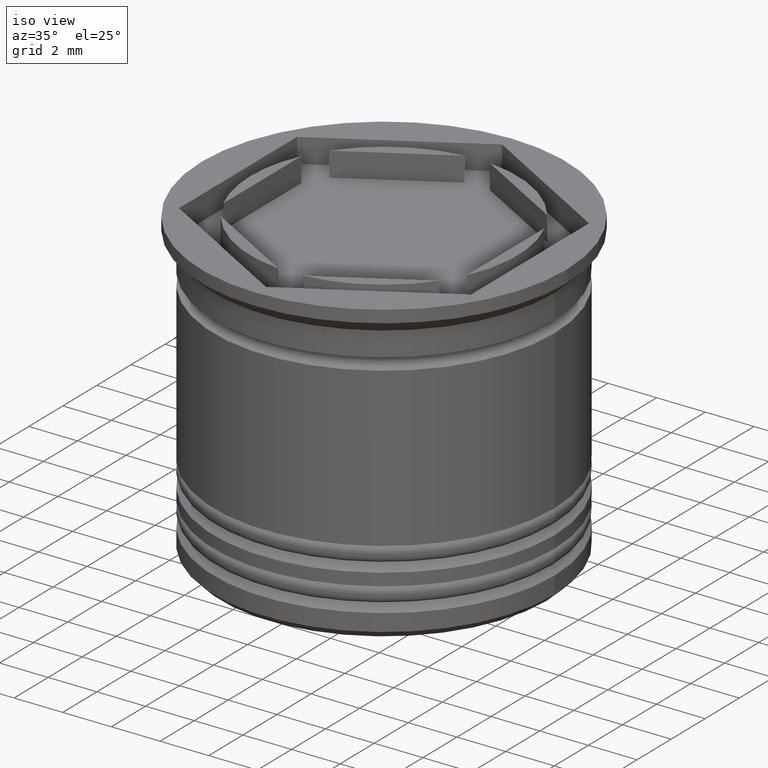
[diagram: clean part render]
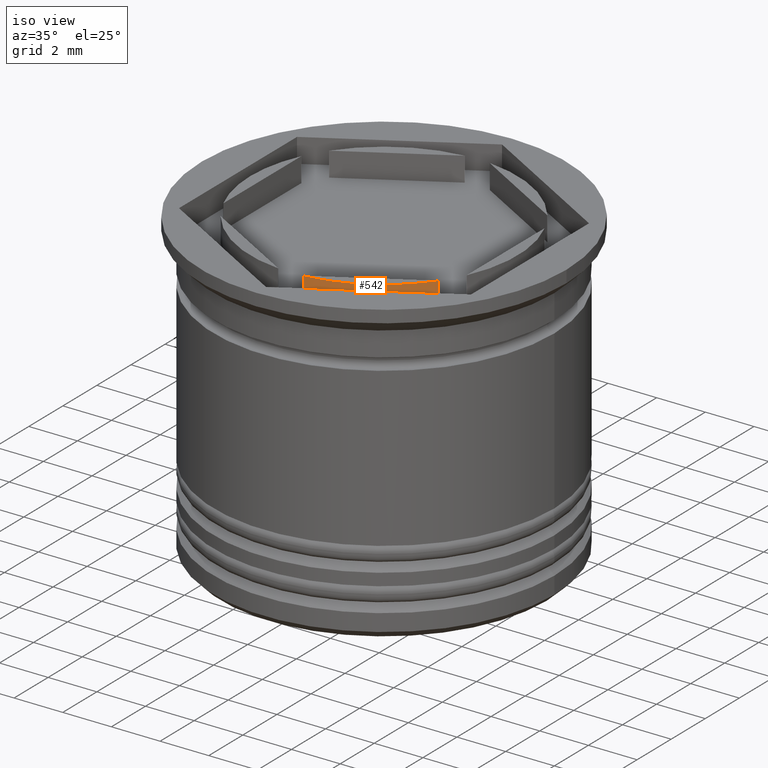
[diagram: same view with one face highlighted and labeled with its STEP entity id]
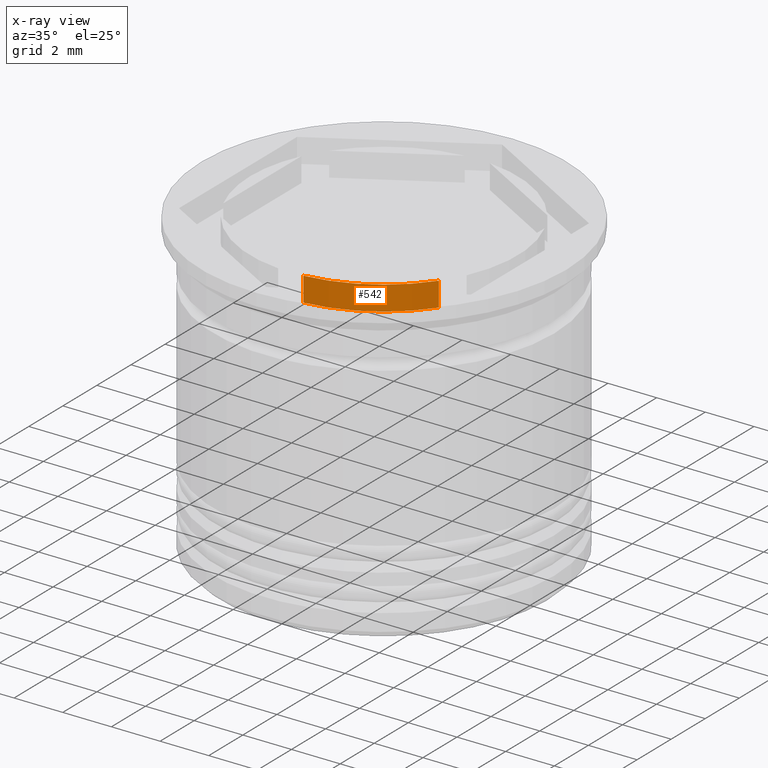
[diagram: x-ray of the same camera — body ghosted, the highlighted face saturated]
A machine part, iso view. The second image highlights one B-rep face of the part: STEP entity #542.
The next image is the same camera in x-ray: the body ghosted, the highlighted face saturated — about 0% of this face is hidden behind the body in this view.
In plain terms, the highlighted cylindrical surface (partial cylindrical patch) has radius 5.5 mm, axis along (-0, -0, -1).
Its self-contained STEP definition (entity closure, byte-faithful):
#105 = EDGE_CURVE ( 'NONE', #583, #1183, #1772, .T. ) ;
#131 = AXIS2_PLACEMENT_3D ( 'NONE', #470, #620, #1202 ) ;
#166 = CARTESIAN_POINT ( 'NONE',  ( 0.000000000000000000, 0.000000000000000000, 15.55634918610404682 ) ) ;
#306 = CARTESIAN_POINT ( 'NONE',  ( 0.5156865167015559637, -5.475770942661154272, 0.000000000000000000 ) ) ;
#470 = CARTESIAN_POINT ( 'NONE',  ( 0.000000000000000000, 0.000000000000000000, -1.000000000000000000 ) ) ;
#473 = VERTEX_POINT ( 'NONE', #1760 ) ;
#491 = VECTOR ( 'NONE', #1510, 1000.000000000000000 ) ;
#542 = ADVANCED_FACE ( 'NONE', ( #777 ), #1378, .T. ) ;
#583 = VERTEX_POINT ( 'NONE', #306 ) ;
#591 = ORIENTED_EDGE ( 'NONE', *, *, #105, .F. ) ;
#620 = DIRECTION ( 'NONE',  ( 0.000000000000000000, 0.000000000000000000, 1.000000000000000000 ) ) ;
#631 = EDGE_CURVE ( 'NONE', #473, #746, #1804, .T. ) ;
#708 = AXIS2_PLACEMENT_3D ( 'NONE', #166, #1697, #909 ) ;
#746 = VERTEX_POINT ( 'NONE', #1430 ) ;
#777 = FACE_OUTER_BOUND ( 'NONE', #1268, .T. ) ;
#821 = DIRECTION ( 'NONE',  ( -0.000000000000000000, -0.000000000000000000, 1.000000000000000000 ) ) ;
#909 = DIRECTION ( 'NONE',  ( -1.000000000000000000, 0.000000000000000000, 0.000000000000000000 ) ) ;
#948 = VECTOR ( 'NONE', #1008, 1000.000000000000000 ) ;
#1008 = DIRECTION ( 'NONE',  ( 0.000000000000000000, 0.000000000000000000, 1.000000000000000000 ) ) ;
#1018 = LINE ( 'NONE', #1158, #491 ) ;
#1048 = CARTESIAN_POINT ( 'NONE',  ( 4.484313483298443259, -3.184483095183235246, 15.55634918610404682 ) ) ;
#1106 = CARTESIAN_POINT ( 'NONE',  ( 0.000000000000000000, 0.000000000000000000, 0.000000000000000000 ) ) ;
#1132 = DIRECTION ( 'NONE',  ( 1.000000000000000000, 0.000000000000000000, 0.000000000000000000 ) ) ;
#1158 = CARTESIAN_POINT ( 'NONE',  ( 0.5156865167015574070, -5.475770942661155161, 15.55634918610404682 ) ) ;
#1183 = VERTEX_POINT ( 'NONE', #1479 ) ;
#1202 = DIRECTION ( 'NONE',  ( 1.000000000000000000, 0.000000000000000000, 0.000000000000000000 ) ) ;
#1268 = EDGE_LOOP ( 'NONE', ( #591, #1617, #1849, #1650 ) ) ;
#1335 = LINE ( 'NONE', #1048, #948 ) ;
#1352 = AXIS2_PLACEMENT_3D ( 'NONE', #1106, #821, #1132 ) ;
#1378 = CYLINDRICAL_SURFACE ( 'NONE', #708, 5.500000000000001776 ) ;
#1430 = CARTESIAN_POINT ( 'NONE',  ( 4.484313483298444147, -3.184483095183233914, -1.000000000000000888 ) ) ;
#1479 = CARTESIAN_POINT ( 'NONE',  ( 4.484313483298443259, -3.184483095183234358, 0.000000000000000000 ) ) ;
#1510 = DIRECTION ( 'NONE',  ( -0.000000000000000000, -0.000000000000000000, -1.000000000000000000 ) ) ;
#1617 = ORIENTED_EDGE ( 'NONE', *, *, #1921, .T. ) ;
#1650 = ORIENTED_EDGE ( 'NONE', *, *, #1902, .T. ) ;
#1697 = DIRECTION ( 'NONE',  ( -0.000000000000000000, -0.000000000000000000, -1.000000000000000000 ) ) ;
#1760 = CARTESIAN_POINT ( 'NONE',  ( 0.5156865167015560747, -5.475770942661154272, -1.000000000000000888 ) ) ;
#1772 = CIRCLE ( 'NONE', #1352, 5.500000000000001776 ) ;
#1804 = CIRCLE ( 'NONE', #131, 5.500000000000001776 ) ;
#1849 = ORIENTED_EDGE ( 'NONE', *, *, #631, .T. ) ;
#1902 = EDGE_CURVE ( 'NONE', #746, #1183, #1335, .T. ) ;
#1921 = EDGE_CURVE ( 'NONE', #583, #473, #1018, .T. ) ;